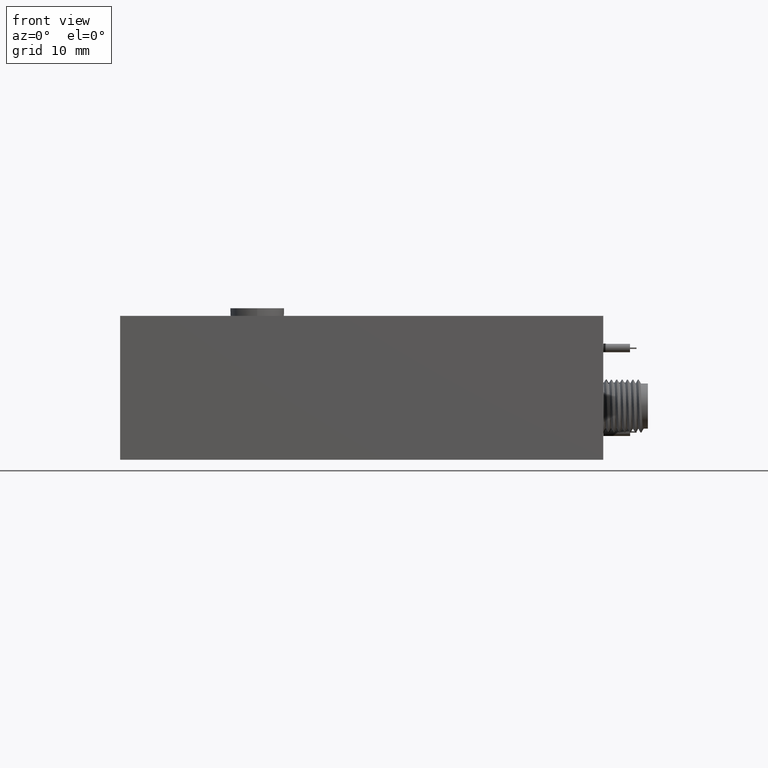
[diagram: clean part render]
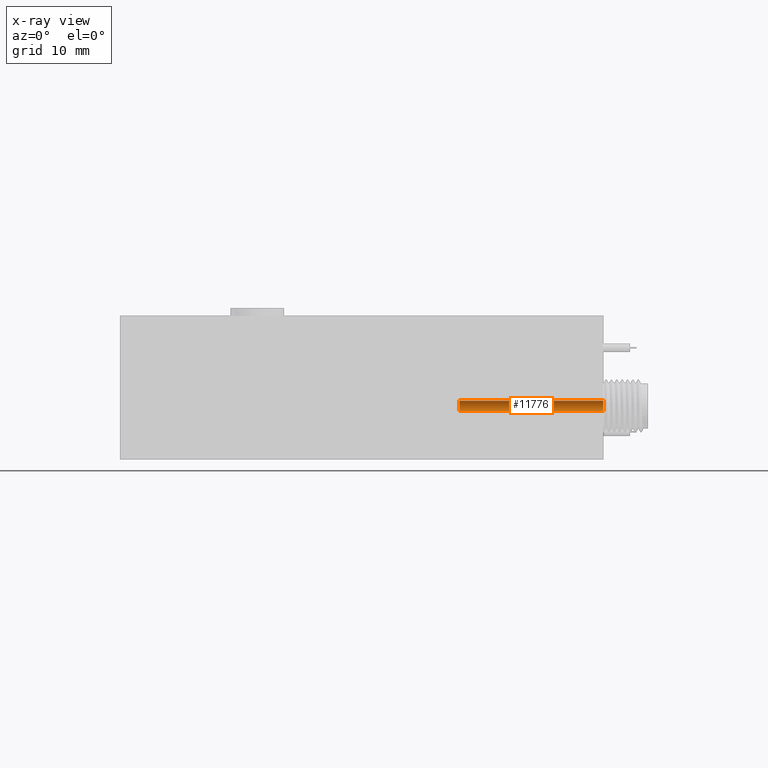
[diagram: x-ray — body ghosted, one internal face saturated and labeled with its STEP entity id]
A machine part, front view, then the same camera in x-ray: the body is ghosted and one INTERNAL B-rep face — a face not visible from any outside direction — is saturated and labeled: STEP entity #11776.
In plain terms, the highlighted cylindrical surface (edge-blend (fillet) strip) has radius 0.635 mm, axis along (1, -0, -0).
Its self-contained STEP definition (entity closure, byte-faithful):
#2 = DIRECTION ( 'NONE',  ( 1.000000000000000000, -0.0000000000000000000, -0.0000000000000000000 ) ) ;
#139 = VERTEX_POINT ( 'NONE', #4293 ) ;
#142 = CIRCLE ( 'NONE', #9152, 0.02500000000000000500 ) ;
#377 = CARTESIAN_POINT ( 'NONE',  ( 1.125000000000000000, -0.6250000000000003300, 0.2750000000000000200 ) ) ;
#878 = CARTESIAN_POINT ( 'NONE',  ( 0.4549999999999999000, -0.6250000000000003300, 0.2249999999999999800 ) ) ;
#1704 = DIRECTION ( 'NONE',  ( 0.0000000000000000000, 0.0000000000000000000, -1.000000000000000000 ) ) ;
#1911 = EDGE_CURVE ( 'NONE', #5355, #139, #3807, .T. ) ;
#2460 = EDGE_CURVE ( 'NONE', #139, #7367, #142, .T. ) ;
#2462 = AXIS2_PLACEMENT_3D ( 'NONE', #8226, #6249, #2575 ) ;
#2503 = ORIENTED_EDGE ( 'NONE', *, *, #1911, .T. ) ;
#2575 = DIRECTION ( 'NONE',  ( 0.0000000000000000000, 0.0000000000000000000, -1.000000000000000000 ) ) ;
#3599 = DIRECTION ( 'NONE',  ( 0.0000000000000000000, 0.0000000000000000000, -1.000000000000000000 ) ) ;
#3807 = LINE ( 'NONE', #878, #9914 ) ;
#4126 = CYLINDRICAL_SURFACE ( 'NONE', #9108, 0.02500000000000000500 ) ;
#4293 = CARTESIAN_POINT ( 'NONE',  ( 1.125000000000000000, -0.6250000000000003300, 0.2249999999999999800 ) ) ;
#4425 = ORIENTED_EDGE ( 'NONE', *, *, #9415, .F. ) ;
#4469 = DIRECTION ( 'NONE',  ( 1.000000000000000000, -0.0000000000000000000, -0.0000000000000000000 ) ) ;
#4543 = VERTEX_POINT ( 'NONE', #6397 ) ;
#4553 = CARTESIAN_POINT ( 'NONE',  ( 0.4549999999999999000, -0.6250000000000003300, 0.2500000000000000000 ) ) ;
#4712 = ORIENTED_EDGE ( 'NONE', *, *, #2460, .T. ) ;
#5355 = VERTEX_POINT ( 'NONE', #8435 ) ;
#6177 = ORIENTED_EDGE ( 'NONE', *, *, #10070, .F. ) ;
#6249 = DIRECTION ( 'NONE',  ( 1.000000000000000000, 0.0000000000000000000, 0.0000000000000000000 ) ) ;
#6397 = CARTESIAN_POINT ( 'NONE',  ( 0.4549999999999999000, -0.6250000000000003300, 0.2750000000000000200 ) ) ;
#7367 = VERTEX_POINT ( 'NONE', #377 ) ;
#7744 = FACE_OUTER_BOUND ( 'NONE', #11616, .T. ) ;
#8226 = CARTESIAN_POINT ( 'NONE',  ( 0.4549999999999999000, -0.6250000000000003300, 0.2500000000000000000 ) ) ;
#8435 = CARTESIAN_POINT ( 'NONE',  ( 0.4549999999999999000, -0.6250000000000003300, 0.2249999999999999800 ) ) ;
#8654 = VECTOR ( 'NONE', #4469, 39.37007874015748100 ) ;
#9108 = AXIS2_PLACEMENT_3D ( 'NONE', #4553, #2, #3599 ) ;
#9152 = AXIS2_PLACEMENT_3D ( 'NONE', #10115, #11053, #1704 ) ;
#9415 = EDGE_CURVE ( 'NONE', #4543, #7367, #12020, .T. ) ;
#9510 = CIRCLE ( 'NONE', #2462, 0.02500000000000000500 ) ;
#9914 = VECTOR ( 'NONE', #10214, 39.37007874015748100 ) ;
#10070 = EDGE_CURVE ( 'NONE', #5355, #4543, #9510, .T. ) ;
#10115 = CARTESIAN_POINT ( 'NONE',  ( 1.125000000000000000, -0.6250000000000003300, 0.2500000000000000000 ) ) ;
#10214 = DIRECTION ( 'NONE',  ( 1.000000000000000000, -0.0000000000000000000, -0.0000000000000000000 ) ) ;
#11053 = DIRECTION ( 'NONE',  ( 1.000000000000000000, 0.0000000000000000000, 0.0000000000000000000 ) ) ;
#11616 = EDGE_LOOP ( 'NONE', ( #4425, #6177, #2503, #4712 ) ) ;
#11776 = ADVANCED_FACE ( 'NONE', ( #7744 ), #4126, .F. ) ;
#11868 = CARTESIAN_POINT ( 'NONE',  ( 0.4549999999999999000, -0.6250000000000003300, 0.2750000000000000200 ) ) ;
#12020 = LINE ( 'NONE', #11868, #8654 ) ;